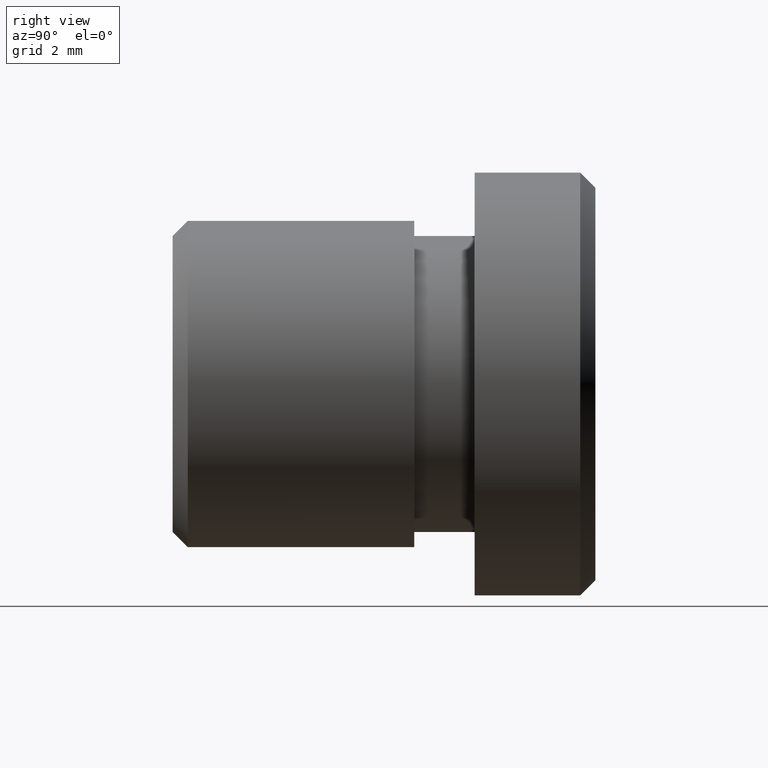
[diagram: clean part render]
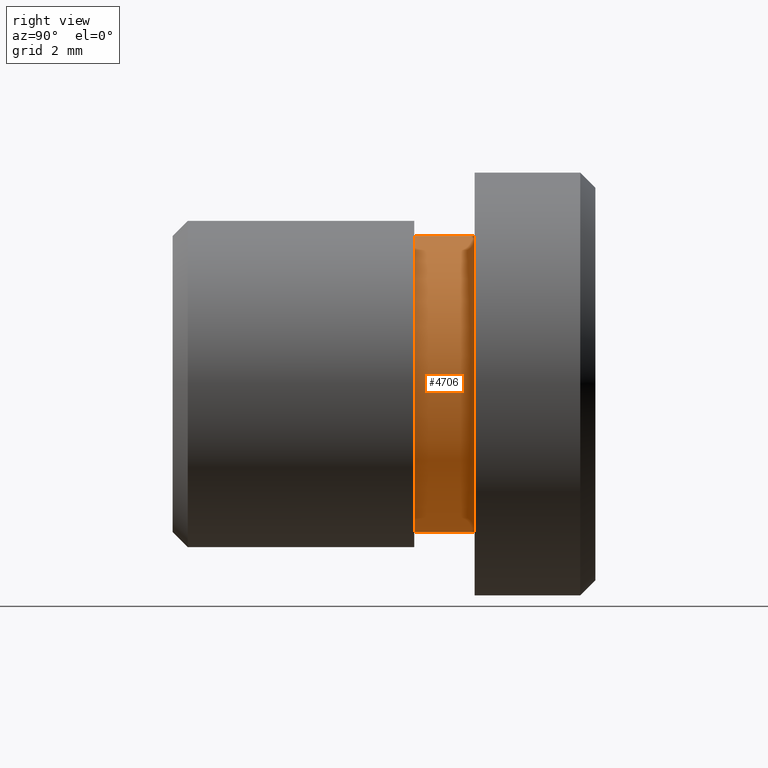
[diagram: same view with one face highlighted and labeled with its STEP entity id]
A machine part, right view. The second image highlights one B-rep face of the part: STEP entity #4706.
In plain terms, the highlighted cylindrical surface (partial cylindrical patch) has radius 4.9 mm, axis along (-0, 1, -0).
Its self-contained STEP definition (entity closure, byte-faithful):
#334 = DIRECTION ( 'NONE',  ( -0.0000000000000000000, 1.000000000000000000, -0.0000000000000000000 ) ) ;
#665 = CARTESIAN_POINT ( 'NONE',  ( 0.0000000000000000000, 10.00000000000000000, 0.0000000000000000000 ) ) ;
#828 = EDGE_CURVE ( 'NONE', #1406, #847, #6188, .T. ) ;
#847 = VERTEX_POINT ( 'NONE', #2561 ) ;
#1115 = CARTESIAN_POINT ( 'NONE',  ( 0.0000000000000000000, 10.00000000000000000, 4.899999999999999500 ) ) ;
#1406 = VERTEX_POINT ( 'NONE', #3209 ) ;
#1583 = FACE_OUTER_BOUND ( 'NONE', #11514, .T. ) ;
#1874 = VERTEX_POINT ( 'NONE', #13081 ) ;
#2561 = CARTESIAN_POINT ( 'NONE',  ( 6.000769315822030700E-016, 10.00000000000000000, -4.899999999999999500 ) ) ;
#2651 = DIRECTION ( 'NONE',  ( -0.0000000000000000000, 1.000000000000000000, -0.0000000000000000000 ) ) ;
#3172 = DIRECTION ( 'NONE',  ( 0.0000000000000000000, 0.0000000000000000000, 1.000000000000000000 ) ) ;
#3209 = CARTESIAN_POINT ( 'NONE',  ( 6.000769315822030700E-016, 8.000000000000000000, -4.899999999999999500 ) ) ;
#4027 = VECTOR ( 'NONE', #10559, 1000.000000000000000 ) ;
#4200 = AXIS2_PLACEMENT_3D ( 'NONE', #12479, #334, #9029 ) ;
#4650 = CARTESIAN_POINT ( 'NONE',  ( 6.000769315822030700E-016, 10.00000000000000000, -4.899999999999999500 ) ) ;
#4706 = ADVANCED_FACE ( 'NONE', ( #1583 ), #9558, .T. ) ;
#4737 = ORIENTED_EDGE ( 'NONE', *, *, #6081, .T. ) ;
#4918 = DIRECTION ( 'NONE',  ( -0.0000000000000000000, 1.000000000000000000, -0.0000000000000000000 ) ) ;
#5776 = CIRCLE ( 'NONE', #4200, 4.899999999999999500 ) ;
#5841 = EDGE_CURVE ( 'NONE', #1874, #5971, #11108, .T. ) ;
#5971 = VERTEX_POINT ( 'NONE', #1115 ) ;
#6081 = EDGE_CURVE ( 'NONE', #1874, #1406, #5776, .T. ) ;
#6082 = CARTESIAN_POINT ( 'NONE',  ( 0.0000000000000000000, 10.00000000000000000, 4.899999999999999500 ) ) ;
#6188 = LINE ( 'NONE', #4650, #11362 ) ;
#6505 = CARTESIAN_POINT ( 'NONE',  ( 0.0000000000000000000, 10.00000000000000000, 0.0000000000000000000 ) ) ;
#7253 = EDGE_CURVE ( 'NONE', #5971, #847, #13329, .T. ) ;
#7648 = DIRECTION ( 'NONE',  ( -0.0000000000000000000, 1.000000000000000000, -0.0000000000000000000 ) ) ;
#8237 = DIRECTION ( 'NONE',  ( 0.0000000000000000000, 0.0000000000000000000, 1.000000000000000000 ) ) ;
#8646 = AXIS2_PLACEMENT_3D ( 'NONE', #6505, #7648, #3172 ) ;
#8860 = ORIENTED_EDGE ( 'NONE', *, *, #5841, .F. ) ;
#9029 = DIRECTION ( 'NONE',  ( 0.0000000000000000000, 0.0000000000000000000, 1.000000000000000000 ) ) ;
#9558 = CYLINDRICAL_SURFACE ( 'NONE', #8646, 4.899999999999999500 ) ;
#9837 = AXIS2_PLACEMENT_3D ( 'NONE', #665, #4918, #8237 ) ;
#10559 = DIRECTION ( 'NONE',  ( -0.0000000000000000000, 1.000000000000000000, -0.0000000000000000000 ) ) ;
#11108 = LINE ( 'NONE', #6082, #4027 ) ;
#11362 = VECTOR ( 'NONE', #2651, 1000.000000000000000 ) ;
#11514 = EDGE_LOOP ( 'NONE', ( #4737, #11651, #14176, #8860 ) ) ;
#11651 = ORIENTED_EDGE ( 'NONE', *, *, #828, .T. ) ;
#12479 = CARTESIAN_POINT ( 'NONE',  ( 0.0000000000000000000, 8.000000000000000000, 0.0000000000000000000 ) ) ;
#13081 = CARTESIAN_POINT ( 'NONE',  ( 0.0000000000000000000, 8.000000000000000000, 4.899999999999999500 ) ) ;
#13329 = CIRCLE ( 'NONE', #9837, 4.899999999999999500 ) ;
#14176 = ORIENTED_EDGE ( 'NONE', *, *, #7253, .F. ) ;